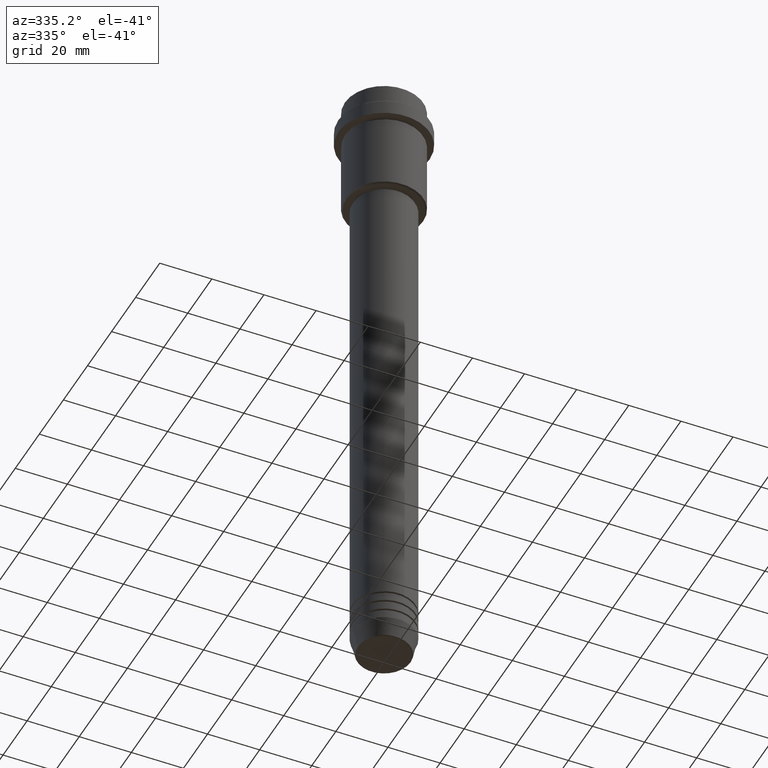
[diagram: clean part render]
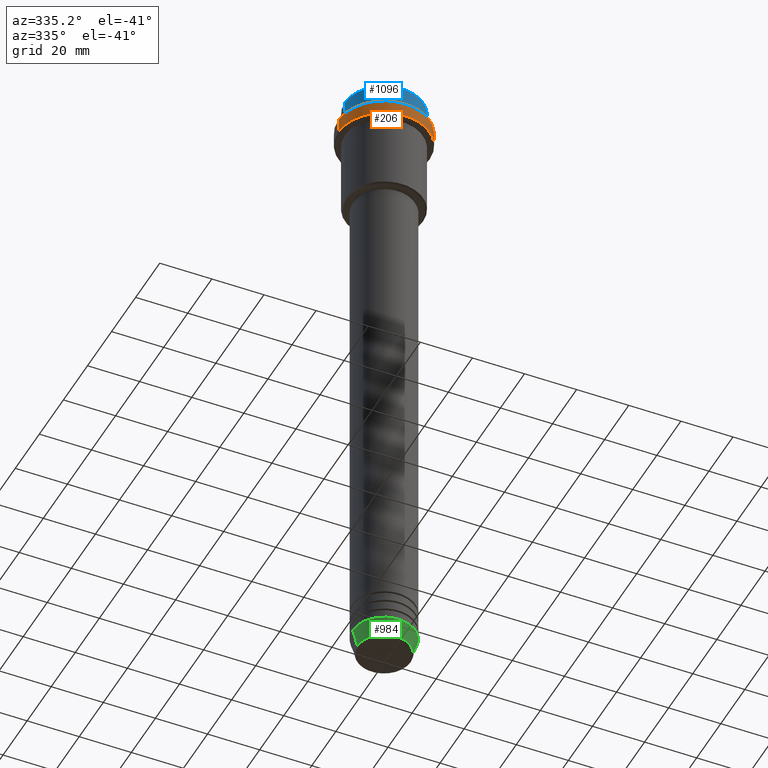
[diagram: same view with three faces highlighted in distinct colors, each labeled with its STEP entity id]
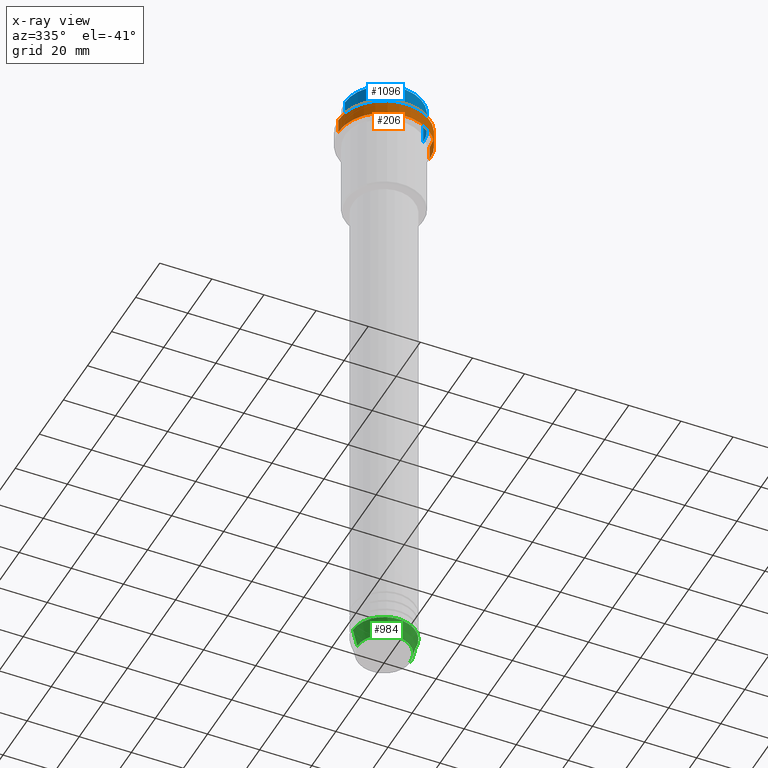
[diagram: x-ray of the same camera — body ghosted, the three highlighted faces saturated]
A machine part, auxiliary view with three faces highlighted in distinct colors.
The next image is the same camera in x-ray (body ghosted, the three faces saturated) — at least one of them is partly hidden behind the body in this view.
Their STEP definitions:

[orange] entity #206 — the highlighted cylindrical surface (partial cylindrical patch) has radius 17.5 mm, axis along (-0, -0, 1).
#12 = AXIS2_PLACEMENT_3D ( 'NONE', #666, #758, #679 ) ;
#13 = ORIENTED_EDGE ( 'NONE', *, *, #1304, .F. ) ;
#65 = DIRECTION ( 'NONE',  ( 1.000000000000000000, 0.000000000000000000, 0.000000000000000000 ) ) ;
#68 = VERTEX_POINT ( 'NONE', #545 ) ;
#75 = CARTESIAN_POINT ( 'NONE',  ( 0.000000000000000000, 0.000000000000000000, 0.000000000000000000 ) ) ;
#120 = EDGE_CURVE ( 'NONE', #592, #1101, #1161, .T. ) ;
#181 = FACE_OUTER_BOUND ( 'NONE', #573, .T. ) ;
#206 = ADVANCED_FACE ( 'NONE', ( #181 ), #1038, .T. ) ;
#256 = CARTESIAN_POINT ( 'NONE',  ( 17.50000000000000000, 0.000000000000000000, -9.499999999999971578 ) ) ;
#288 = AXIS2_PLACEMENT_3D ( 'NONE', #1134, #1319, #65 ) ;
#322 = ORIENTED_EDGE ( 'NONE', *, *, #120, .T. ) ;
#323 = ORIENTED_EDGE ( 'NONE', *, *, #1019, .T. ) ;
#472 = VERTEX_POINT ( 'NONE', #915 ) ;
#505 = CARTESIAN_POINT ( 'NONE',  ( 17.50000000000000000, 0.000000000000000000, 0.000000000000000000 ) ) ;
#533 = CARTESIAN_POINT ( 'NONE',  ( -17.50000000000000000, 2.143131898507868248E-15, 0.000000000000000000 ) ) ;
#545 = CARTESIAN_POINT ( 'NONE',  ( -17.50000000000000000, 2.143131898507868248E-15, -15.00000000000000000 ) ) ;
#557 = CIRCLE ( 'NONE', #288, 17.50000000000000000 ) ;
#573 = EDGE_LOOP ( 'NONE', ( #13, #323, #322, #1139 ) ) ;
#592 = VERTEX_POINT ( 'NONE', #1390 ) ;
#610 = AXIS2_PLACEMENT_3D ( 'NONE', #75, #946, #1382 ) ;
#613 = DIRECTION ( 'NONE',  ( -0.000000000000000000, -0.000000000000000000, 1.000000000000000000 ) ) ;
#666 = CARTESIAN_POINT ( 'NONE',  ( 0.000000000000000000, 0.000000000000000000, -15.00000000000000000 ) ) ;
#676 = EDGE_CURVE ( 'NONE', #1101, #472, #557, .T. ) ;
#679 = DIRECTION ( 'NONE',  ( 1.000000000000000000, 0.000000000000000000, 0.000000000000000000 ) ) ;
#725 = DIRECTION ( 'NONE',  ( -0.000000000000000000, -0.000000000000000000, 1.000000000000000000 ) ) ;
#747 = LINE ( 'NONE', #533, #936 ) ;
#758 = DIRECTION ( 'NONE',  ( -0.000000000000000000, -0.000000000000000000, 1.000000000000000000 ) ) ;
#880 = CIRCLE ( 'NONE', #12, 17.50000000000000000 ) ;
#915 = CARTESIAN_POINT ( 'NONE',  ( -17.50000000000000000, 2.143131898507868248E-15, -9.499999999999971578 ) ) ;
#936 = VECTOR ( 'NONE', #725, 1000.000000000000000 ) ;
#946 = DIRECTION ( 'NONE',  ( -0.000000000000000000, -0.000000000000000000, 1.000000000000000000 ) ) ;
#1019 = EDGE_CURVE ( 'NONE', #68, #592, #880, .T. ) ;
#1038 = CYLINDRICAL_SURFACE ( 'NONE', #610, 17.50000000000000000 ) ;
#1101 = VERTEX_POINT ( 'NONE', #256 ) ;
#1134 = CARTESIAN_POINT ( 'NONE',  ( 0.000000000000000000, 0.000000000000000000, -9.499999999999971578 ) ) ;
#1139 = ORIENTED_EDGE ( 'NONE', *, *, #676, .T. ) ;
#1161 = LINE ( 'NONE', #505, #1309 ) ;
#1304 = EDGE_CURVE ( 'NONE', #68, #472, #747, .T. ) ;
#1309 = VECTOR ( 'NONE', #613, 1000.000000000000000 ) ;
#1319 = DIRECTION ( 'NONE',  ( 0.000000000000000000, 0.000000000000000000, -1.000000000000000000 ) ) ;
#1382 = DIRECTION ( 'NONE',  ( 1.000000000000000000, 0.000000000000000000, 0.000000000000000000 ) ) ;
#1390 = CARTESIAN_POINT ( 'NONE',  ( 17.50000000000000000, 0.000000000000000000, -15.00000000000000000 ) ) ;

[blue] entity #1096 — the highlighted cylindrical surface (partial cylindrical patch) has radius 15 mm, axis along (-0, -0, 1).
#26 = CARTESIAN_POINT ( 'NONE',  ( -15.00000000000000000, 1.836970198721029589E-15, 0.000000000000000000 ) ) ;
#28 = LINE ( 'NONE', #908, #1360 ) ;
#37 = CARTESIAN_POINT ( 'NONE',  ( 15.00000000000000000, 0.000000000000000000, -0.5000000000000108802 ) ) ;
#49 = DIRECTION ( 'NONE',  ( 0.000000000000000000, 0.000000000000000000, -1.000000000000000000 ) ) ;
#144 = CARTESIAN_POINT ( 'NONE',  ( 0.000000000000000000, 0.000000000000000000, -7.999999999999998224 ) ) ;
#158 = CARTESIAN_POINT ( 'NONE',  ( 0.000000000000000000, 0.000000000000000000, 0.000000000000000000 ) ) ;
#172 = CARTESIAN_POINT ( 'NONE',  ( 15.00000000000000000, 0.000000000000000000, -7.999999999999998224 ) ) ;
#174 = DIRECTION ( 'NONE',  ( 1.000000000000000000, 0.000000000000000000, 0.000000000000000000 ) ) ;
#186 = CIRCLE ( 'NONE', #268, 15.00000000000000000 ) ;
#268 = AXIS2_PLACEMENT_3D ( 'NONE', #482, #49, #174 ) ;
#336 = DIRECTION ( 'NONE',  ( -0.000000000000000000, -0.000000000000000000, 1.000000000000000000 ) ) ;
#341 = DIRECTION ( 'NONE',  ( -0.000000000000000000, -0.000000000000000000, 1.000000000000000000 ) ) ;
#347 = EDGE_LOOP ( 'NONE', ( #793, #1345, #1261, #534 ) ) ;
#482 = CARTESIAN_POINT ( 'NONE',  ( 0.000000000000000000, 0.000000000000000000, -0.5000000000000108802 ) ) ;
#487 = CYLINDRICAL_SURFACE ( 'NONE', #616, 15.00000000000000000 ) ;
#506 = DIRECTION ( 'NONE',  ( 1.000000000000000000, 0.000000000000000000, 0.000000000000000000 ) ) ;
#519 = CIRCLE ( 'NONE', #721, 15.00000000000000000 ) ;
#528 = EDGE_CURVE ( 'NONE', #728, #635, #28, .T. ) ;
#534 = ORIENTED_EDGE ( 'NONE', *, *, #1209, .T. ) ;
#555 = DIRECTION ( 'NONE',  ( 1.000000000000000000, 0.000000000000000000, 0.000000000000000000 ) ) ;
#564 = CARTESIAN_POINT ( 'NONE',  ( -15.00000000000000000, 1.836970198721029589E-15, -7.999999999999998224 ) ) ;
#616 = AXIS2_PLACEMENT_3D ( 'NONE', #158, #1352, #506 ) ;
#635 = VERTEX_POINT ( 'NONE', #37 ) ;
#665 = EDGE_CURVE ( 'NONE', #824, #1027, #879, .T. ) ;
#721 = AXIS2_PLACEMENT_3D ( 'NONE', #144, #341, #555 ) ;
#728 = VERTEX_POINT ( 'NONE', #172 ) ;
#793 = ORIENTED_EDGE ( 'NONE', *, *, #665, .F. ) ;
#810 = DIRECTION ( 'NONE',  ( -0.000000000000000000, -0.000000000000000000, 1.000000000000000000 ) ) ;
#824 = VERTEX_POINT ( 'NONE', #564 ) ;
#879 = LINE ( 'NONE', #26, #903 ) ;
#903 = VECTOR ( 'NONE', #336, 1000.000000000000000 ) ;
#908 = CARTESIAN_POINT ( 'NONE',  ( 15.00000000000000000, 0.000000000000000000, 0.000000000000000000 ) ) ;
#910 = CARTESIAN_POINT ( 'NONE',  ( -15.00000000000000000, 1.836970198721029589E-15, -0.5000000000000108802 ) ) ;
#917 = FACE_OUTER_BOUND ( 'NONE', #347, .T. ) ;
#1009 = EDGE_CURVE ( 'NONE', #824, #728, #519, .T. ) ;
#1027 = VERTEX_POINT ( 'NONE', #910 ) ;
#1096 = ADVANCED_FACE ( 'NONE', ( #917 ), #487, .T. ) ;
#1209 = EDGE_CURVE ( 'NONE', #635, #1027, #186, .T. ) ;
#1261 = ORIENTED_EDGE ( 'NONE', *, *, #528, .T. ) ;
#1345 = ORIENTED_EDGE ( 'NONE', *, *, #1009, .T. ) ;
#1352 = DIRECTION ( 'NONE',  ( -0.000000000000000000, -0.000000000000000000, 1.000000000000000000 ) ) ;
#1360 = VECTOR ( 'NONE', #810, 1000.000000000000000 ) ;

[green] entity #984 — the highlighted conical surface has half-angle 15 deg.
#24 = ORIENTED_EDGE ( 'NONE', *, *, #485, .F. ) ;
#69 = CARTESIAN_POINT ( 'NONE',  ( -12.00000000000000000, 1.469576158976823947E-15, -243.0000000000000000 ) ) ;
#135 = ORIENTED_EDGE ( 'NONE', *, *, #1245, .T. ) ;
#233 = CARTESIAN_POINT ( 'NONE',  ( 0.000000000000000000, 0.000000000000000000, -243.0000000000000000 ) ) ;
#273 = CARTESIAN_POINT ( 'NONE',  ( 12.00000000000000000, 0.000000000000000000, -243.0000000000000000 ) ) ;
#282 = CARTESIAN_POINT ( 'NONE',  ( -12.00000000000000000, 1.469576158976823947E-15, -243.0000000000000000 ) ) ;
#291 = VECTOR ( 'NONE', #705, 1000.000000000000000 ) ;
#293 = CARTESIAN_POINT ( 'NONE',  ( 10.22365507213719127, 0.000000000000000000, -249.6294095225512422 ) ) ;
#353 = AXIS2_PLACEMENT_3D ( 'NONE', #233, #1204, #551 ) ;
#385 = CIRCLE ( 'NONE', #1252, 10.22365507213719127 ) ;
#392 = CARTESIAN_POINT ( 'NONE',  ( -10.22365507213719127, 1.360806402472382744E-15, -249.6294095225512422 ) ) ;
#485 = EDGE_CURVE ( 'NONE', #489, #526, #798, .T. ) ;
#489 = VERTEX_POINT ( 'NONE', #392 ) ;
#510 = CARTESIAN_POINT ( 'NONE',  ( 12.00000000000000000, 0.000000000000000000, -243.0000000000000000 ) ) ;
#526 = VERTEX_POINT ( 'NONE', #69 ) ;
#551 = DIRECTION ( 'NONE',  ( 1.000000000000000000, 0.000000000000000000, 0.000000000000000000 ) ) ;
#612 = VECTOR ( 'NONE', #818, 1000.000000000000000 ) ;
#633 = DIRECTION ( 'NONE',  ( -0.000000000000000000, -0.000000000000000000, 1.000000000000000000 ) ) ;
#705 = DIRECTION ( 'NONE',  ( 0.2588190451025213501, 0.000000000000000000, 0.9659258262890680902 ) ) ;
#759 = AXIS2_PLACEMENT_3D ( 'NONE', #1371, #633, #925 ) ;
#764 = FACE_OUTER_BOUND ( 'NONE', #901, .T. ) ;
#798 = LINE ( 'NONE', #282, #612 ) ;
#814 = ORIENTED_EDGE ( 'NONE', *, *, #905, .F. ) ;
#818 = DIRECTION ( 'NONE',  ( -0.2588190451025213501, 3.169619151431772337E-17, 0.9659258262890680902 ) ) ;
#901 = EDGE_LOOP ( 'NONE', ( #24, #927, #135, #814 ) ) ;
#905 = EDGE_CURVE ( 'NONE', #526, #1115, #1363, .T. ) ;
#925 = DIRECTION ( 'NONE',  ( 1.000000000000000000, 0.000000000000000000, 0.000000000000000000 ) ) ;
#927 = ORIENTED_EDGE ( 'NONE', *, *, #1162, .T. ) ;
#984 = ADVANCED_FACE ( 'NONE', ( #764 ), #1180, .T. ) ;
#1025 = DIRECTION ( 'NONE',  ( 1.000000000000000000, 0.000000000000000000, 0.000000000000000000 ) ) ;
#1115 = VERTEX_POINT ( 'NONE', #273 ) ;
#1130 = DIRECTION ( 'NONE',  ( -0.000000000000000000, -0.000000000000000000, 1.000000000000000000 ) ) ;
#1162 = EDGE_CURVE ( 'NONE', #489, #1351, #385, .T. ) ;
#1163 = CARTESIAN_POINT ( 'NONE',  ( 0.000000000000000000, 0.000000000000000000, -249.6294095225512422 ) ) ;
#1180 = CONICAL_SURFACE ( 'NONE', #353, 12.00000000000000000, 0.2617993877991500740 ) ;
#1204 = DIRECTION ( 'NONE',  ( -0.000000000000000000, -0.000000000000000000, 1.000000000000000000 ) ) ;
#1245 = EDGE_CURVE ( 'NONE', #1351, #1115, #1359, .T. ) ;
#1252 = AXIS2_PLACEMENT_3D ( 'NONE', #1163, #1130, #1025 ) ;
#1351 = VERTEX_POINT ( 'NONE', #293 ) ;
#1359 = LINE ( 'NONE', #510, #291 ) ;
#1363 = CIRCLE ( 'NONE', #759, 12.00000000000000000 ) ;
#1371 = CARTESIAN_POINT ( 'NONE',  ( 0.000000000000000000, 0.000000000000000000, -243.0000000000000000 ) ) ;